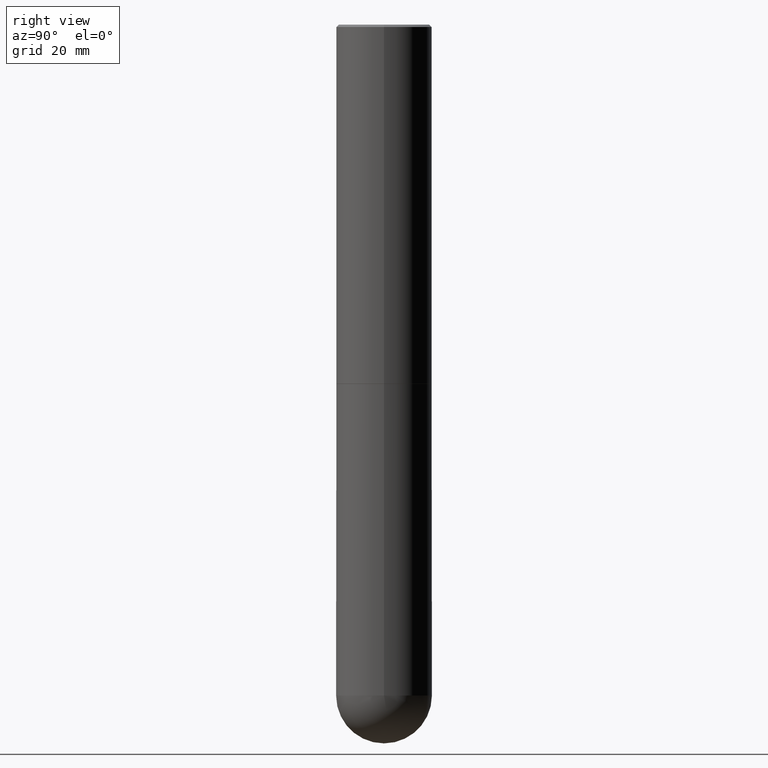
[diagram: clean part render]
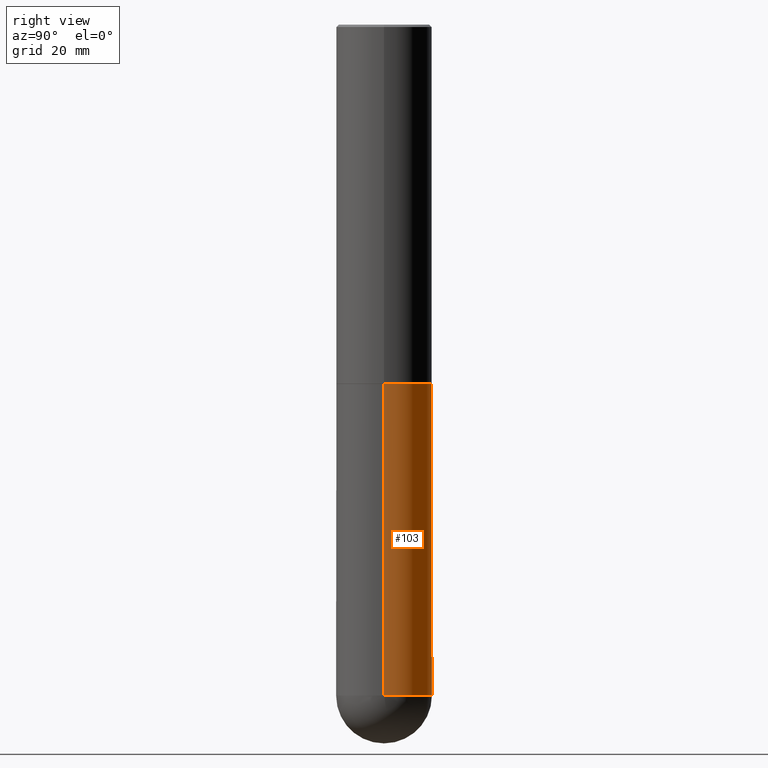
[diagram: same view with one face highlighted and labeled with its STEP entity id]
A machine part, right view. The second image highlights one B-rep face of the part: STEP entity #103.
In plain terms, the highlighted cylindrical surface (partial cylindrical patch) has radius 10 mm, axis along (-0, 0, 1).
Its self-contained STEP definition (entity closure, byte-faithful):
#7 = CARTESIAN_POINT ( 'NONE',  ( 7.220735744022852519E-29, -1.030929694920215502E-14, -2.952700000000000102 ) ) ;
#24 = AXIS2_PLACEMENT_3D ( 'NONE', #399, #265, #248 ) ;
#28 = VECTOR ( 'NONE', #352, 39.37007874015748143 ) ;
#32 = DIRECTION ( 'NONE',  ( -2.445468806185136597E-29, 3.491481338843145583E-15, 1.000000000000000000 ) ) ;
#55 = VERTEX_POINT ( 'NONE', #320 ) ;
#56 = VERTEX_POINT ( 'NONE', #319 ) ;
#64 = EDGE_CURVE ( 'NONE', #143, #56, #412, .T. ) ;
#68 = CARTESIAN_POINT ( 'NONE',  ( -0.3937000000000001054, 2.797406750687515181E-15, -1.936584745033357016E-29 ) ) ;
#73 = LINE ( 'NONE', #68, #28 ) ;
#86 = ORIENTED_EDGE ( 'NONE', *, *, #279, .T. ) ;
#94 = CARTESIAN_POINT ( 'NONE',  ( 0.3937000000000001054, -1.752601430252398275E-14, -5.511800000000000033 ) ) ;
#98 = CARTESIAN_POINT ( 'NONE',  ( 1.347893496593123646E-28, -1.924434684343564878E-14, -5.511800000000000033 ) ) ;
#99 = DIRECTION ( 'NONE',  ( 1.000000000000000000, -6.982962677686266711E-15, 0.000000000000000000 ) ) ;
#101 = CIRCLE ( 'NONE', #160, 0.3937000000000001054 ) ;
#103 = ADVANCED_FACE ( 'NONE', ( #281 ), #159, .T. ) ;
#133 = CIRCLE ( 'NONE', #403, 0.3937000000000000499 ) ;
#140 = DIRECTION ( 'NONE',  ( 1.000000000000000000, -6.982962677686267499E-15, 0.000000000000000000 ) ) ;
#143 = VERTEX_POINT ( 'NONE', #94 ) ;
#148 = DIRECTION ( 'NONE',  ( 1.000000000000000000, -6.982962677686266711E-15, 0.000000000000000000 ) ) ;
#154 = AXIS2_PLACEMENT_3D ( 'NONE', #177, #381, #148 ) ;
#159 = CYLINDRICAL_SURFACE ( 'NONE', #24, 0.3937000000000001054 ) ;
#160 = AXIS2_PLACEMENT_3D ( 'NONE', #98, #32, #99 ) ;
#176 = EDGE_LOOP ( 'NONE', ( #321, #86, #372, #314, #184 ) ) ;
#177 = CARTESIAN_POINT ( 'NONE',  ( 1.347893496593123646E-28, -1.924434684343564878E-14, -5.511800000000000033 ) ) ;
#184 = ORIENTED_EDGE ( 'NONE', *, *, #64, .T. ) ;
#205 = CARTESIAN_POINT ( 'NONE',  ( -0.3937000000000000499, -1.197941514563138553E-14, -2.952700000000000102 ) ) ;
#212 = CARTESIAN_POINT ( 'NONE',  ( 0.3937000000000001054, -2.749192406205084005E-15, 1.919750796630860452E-29 ) ) ;
#235 = DIRECTION ( 'NONE',  ( -2.445468806185136597E-29, 3.491481338843145583E-15, 1.000000000000000000 ) ) ;
#248 = DIRECTION ( 'NONE',  ( 1.000000000000000000, -6.982962677686266711E-15, 4.876176775795935793E-29 ) ) ;
#249 = VERTEX_POINT ( 'NONE', #205 ) ;
#265 = DIRECTION ( 'NONE',  ( -2.445468806185136597E-29, 3.491481338843145583E-15, 1.000000000000000000 ) ) ;
#276 = EDGE_CURVE ( 'NONE', #55, #249, #133, .T. ) ;
#278 = CARTESIAN_POINT ( 'NONE',  ( -0.3937000000000001054, -1.197941514563138553E-14, -5.511800000000000033 ) ) ;
#279 = EDGE_CURVE ( 'NONE', #362, #249, #73, .T. ) ;
#281 = FACE_OUTER_BOUND ( 'NONE', #176, .T. ) ;
#298 = VECTOR ( 'NONE', #304, 39.37007874015748143 ) ;
#302 = EDGE_CURVE ( 'NONE', #56, #362, #101, .T. ) ;
#304 = DIRECTION ( 'NONE',  ( -2.445468806185136877E-29, 3.491481338843145188E-15, 1.000000000000000000 ) ) ;
#307 = LINE ( 'NONE', #212, #298 ) ;
#314 = ORIENTED_EDGE ( 'NONE', *, *, #345, .F. ) ;
#319 = CARTESIAN_POINT ( 'NONE',  ( 2.749192406205216928E-15, 0.3936999999999805655, -5.511800000000000921 ) ) ;
#320 = CARTESIAN_POINT ( 'NONE',  ( 0.3937000000000000499, -1.305848935540723823E-14, -2.952700000000000102 ) ) ;
#321 = ORIENTED_EDGE ( 'NONE', *, *, #302, .T. ) ;
#345 = EDGE_CURVE ( 'NONE', #143, #55, #307, .T. ) ;
#352 = DIRECTION ( 'NONE',  ( -2.445468806185136877E-29, 3.491481338843145188E-15, 1.000000000000000000 ) ) ;
#362 = VERTEX_POINT ( 'NONE', #278 ) ;
#372 = ORIENTED_EDGE ( 'NONE', *, *, #276, .F. ) ;
#381 = DIRECTION ( 'NONE',  ( -2.445468806185136597E-29, 3.491481338843145583E-15, 1.000000000000000000 ) ) ;
#399 = CARTESIAN_POINT ( 'NONE',  ( 0.000000000000000000, 0.000000000000000000, 0.000000000000000000 ) ) ;
#403 = AXIS2_PLACEMENT_3D ( 'NONE', #7, #235, #140 ) ;
#412 = CIRCLE ( 'NONE', #154, 0.3937000000000001054 ) ;